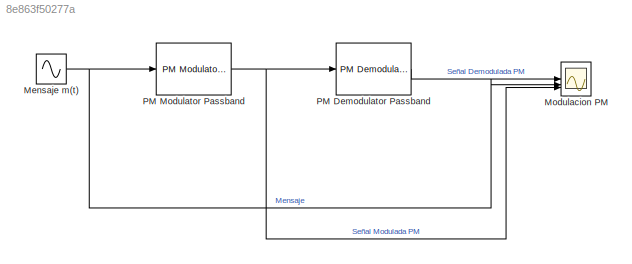
MODEL slx_8e863f50277a
KIND model
CONFIG AbsTol = auto
CONFIG EnableMultiTasking = on
CONFIG FixedStep = auto
CONFIG MaxStep = auto
CONFIG MinStep = auto
CONFIG RelTol = 1e-3
CONFIG SampleTimeConstraint = Unconstrained
CONFIG SolverName = VariableStepAuto
CONFIG StartTime = 0.0
CONFIG StopTime = 0.05
BLOCK [Sin] Mensaje m(t)
  Frequency = 2*pi*1000
  SampleTime = 0.000001
BLOCK [Scope] Modulacion PM
  Floating = off
  NumInputPorts = 3
  ScopeSpecificationString = Simulink.scopes.TimeScopeBlockCfg('CurrentConfiguration', extmgr.ConfigurationSet(extmgr.Configuration('Core','General UI',true),extmgr.Configuration('Core','Source UI',true),extmgr.Configuration('Sources','WiredSimulink',true),extmgr.Configuration('Visuals','Time Domain',true,'SerializedDisplays',{struct('MinYLimReal','-2.10227','MaxYLimReal','2.10227','YLabelReal','','MinYLimMag','0.00000','MaxY...<+3060ch>
BLOCK [Reference] PM Demodulator Passband  REF=commanapbnd3/PM
Demodulator
Passband
  SourceBlock = commanapbnd3/PM\nDemodulator\nPassband
  SourceType = PM Demodulator Passband
BLOCK [Reference] PM Modulator Passband  REF=commanapbnd3/PM
Modulator
Passband
  SourceBlock = commanapbnd3/PM\nModulator\nPassband
  SourceType = PM Modulator Passband
NET Mensaje m(t):1 -> Modulacion PM:2, PM Modulator Passband:1
LINE PM Demodulator Passband:1 -> Modulacion PM:1
NET PM Modulator Passband:1 -> Modulacion PM:3, PM Demodulator Passband:1
note: NET lines group one-source signal fan-out (src -> all destinations, sorted); 1:1 wires keep LINE
